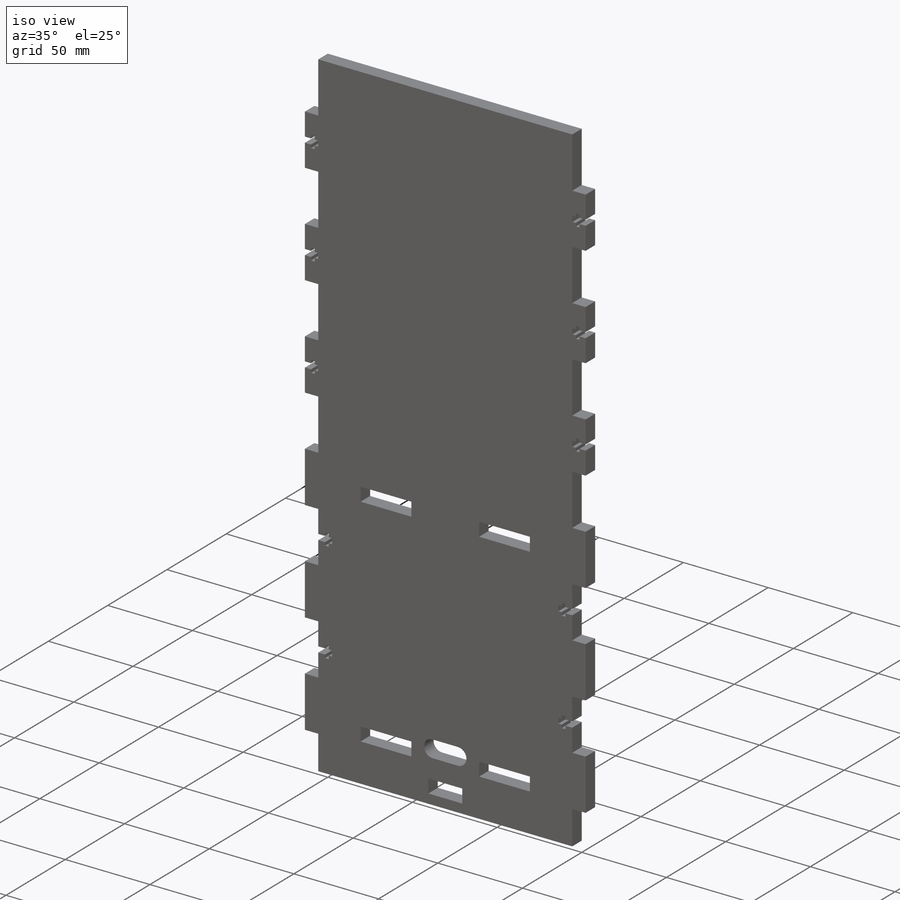
[diagram: iso view]
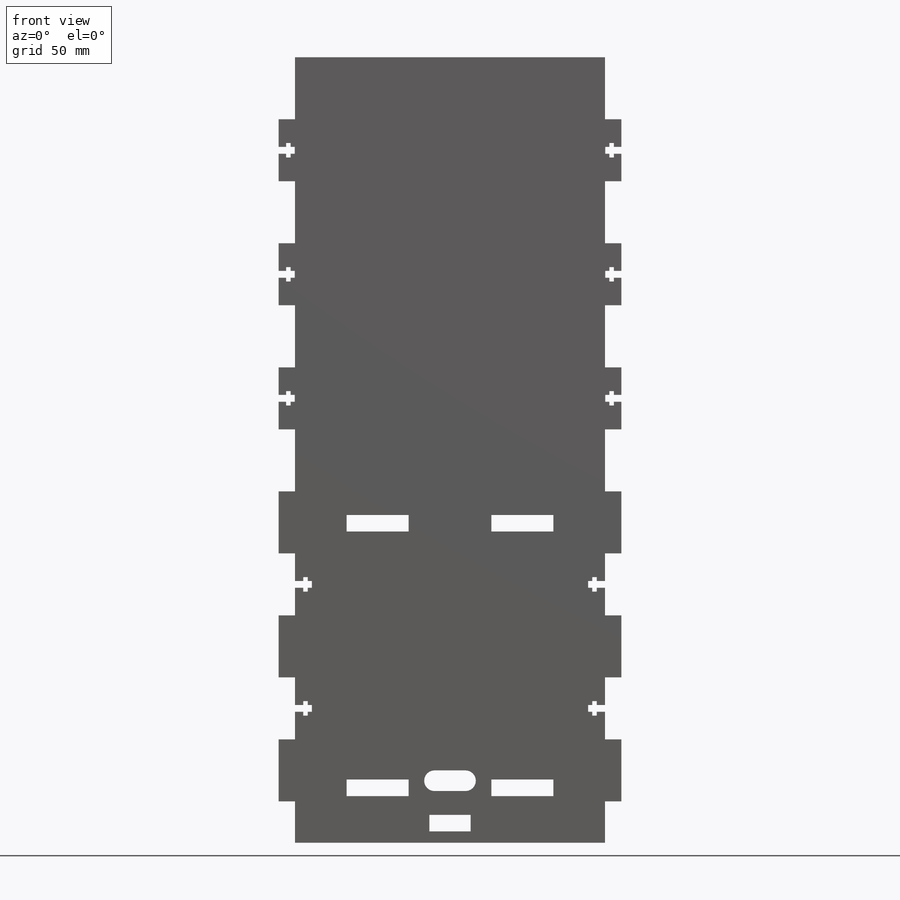
[diagram: front view]
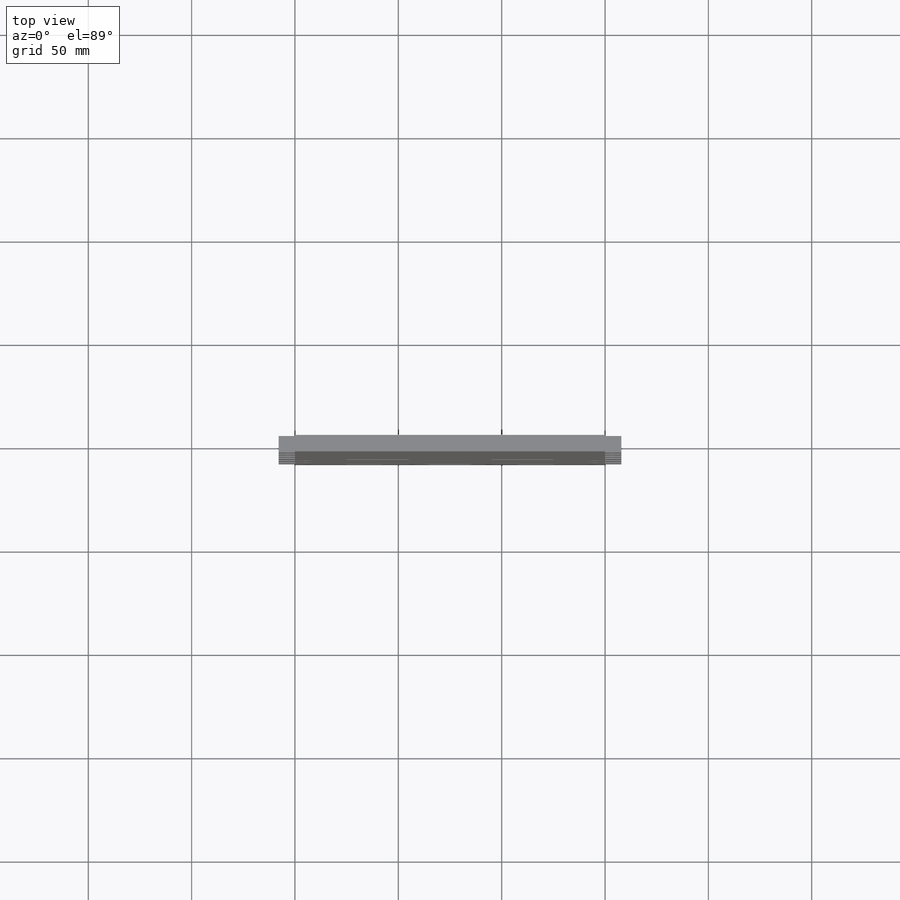
[diagram: top view]
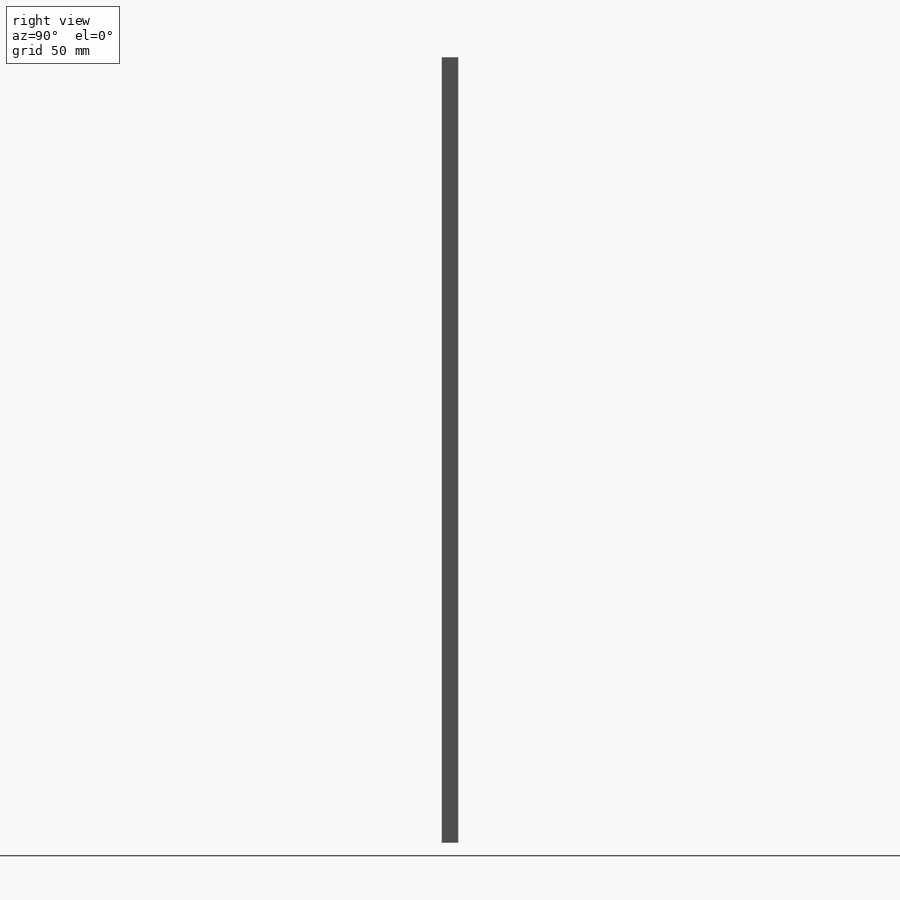
[diagram: right view]
SOLIDWORKS PART (.sldprt)
format: sldprt  version: not decoded by parser v0  size: 497,664 bytes
history: native  units: mm
features: sketch x3, extrude x2, material x1, cut_extrude x1 (+16 scaffold rows collapsed)
feature tree (23):
  scaffold x16  (default folders/planes/origin — collapsed)
  material  "Acrylic (Medium-high impact)"
  sketch  "Sketch1"  dims[D1=150.0mm D2=380.0mm]
  extrude  "Boss-Extrude1"  Depth=8mm
  sketch  "Sketch2"  dims[D1=7.9mm D2=30.0mm D3=30.0mm D4=2.0]
  extrude  "Boss-Extrude2"  Depth=8mm
  sketch  "Sketch3"  dims[c1.D2=5.0mm c1.D1=15.0mm c1.D3=15.0mm c1.D4=25.0mm c2.D3=3.3mm c2.D5=7.0mm c2.D6=2.2mm c2.D7=4.0mm c2.D8=2.0mm c2.D9=4.0mm c2.D10=2.2mm c2.D11=2.0mm c2.D12=3.3mm c2.D13=7.0mm c3.D9=4.0mm c3.D10=2.2mm c3.D11=2.0mm c3.D12=3.3mm c3.D13=7.0mm c3.D7=0.1mm c4.D10=4.0mm c4.D11=2.3mm c4.D12=2.0mm c4.D13=3.3mm c4.D14=7.0mm c4.D7=0.1mm c4.D9=4.0mm c5.D10=2.2mm c5.D11=2.0mm c5.D12=3.3mm c5.D13=7.0mm c5.D15=3.0]
  cut_extrude  "Cut-Extrude2"  [1 undecoded]
decode coverage: 5 of 6 modeling features carry decoded parameters
note: 1 parameter value undecoded
note: suppression state not decoded; provenance and decode notes live in map.json
